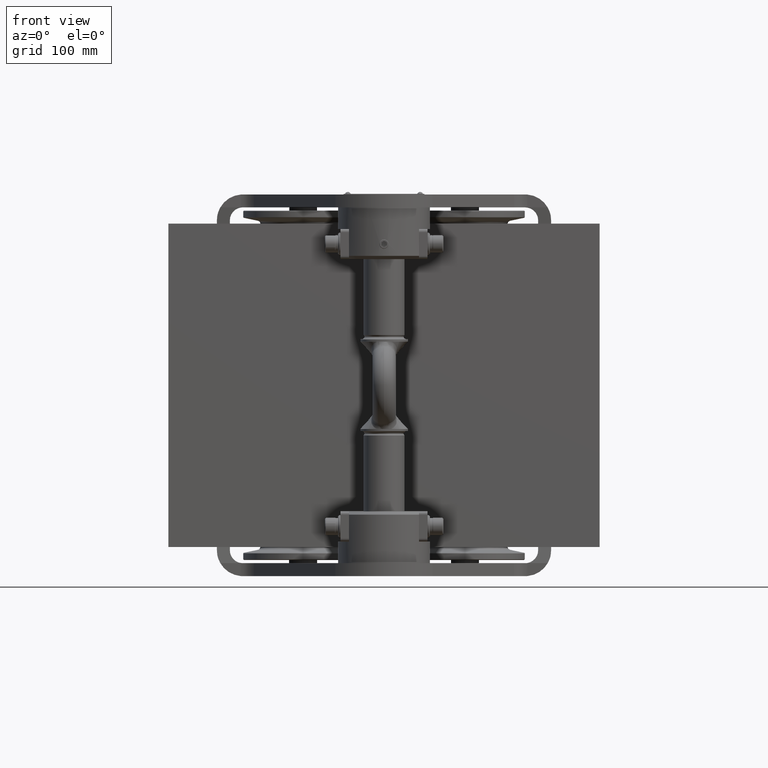
[diagram: clean part render]
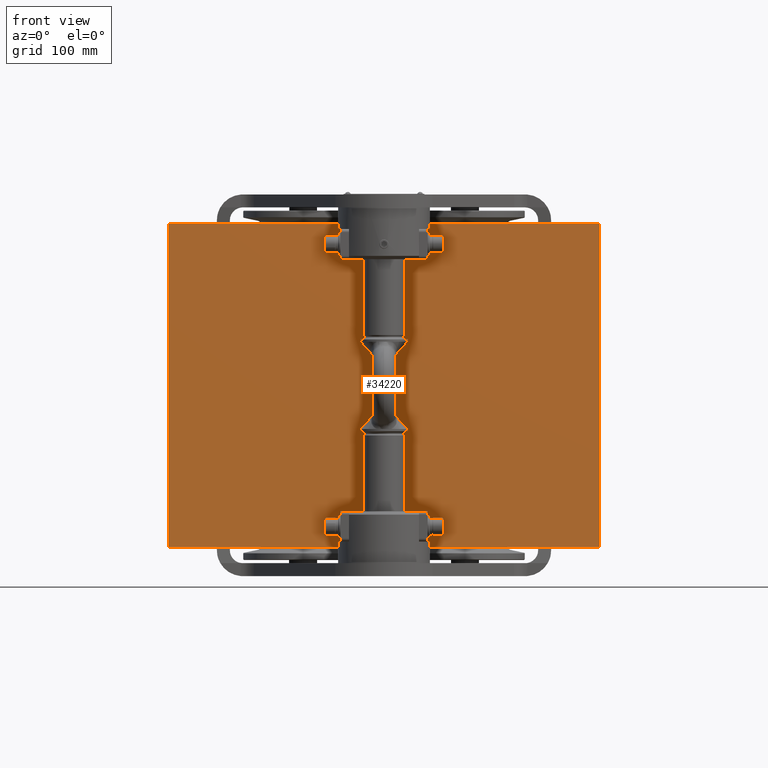
[diagram: same view with one face highlighted and labeled with its STEP entity id]
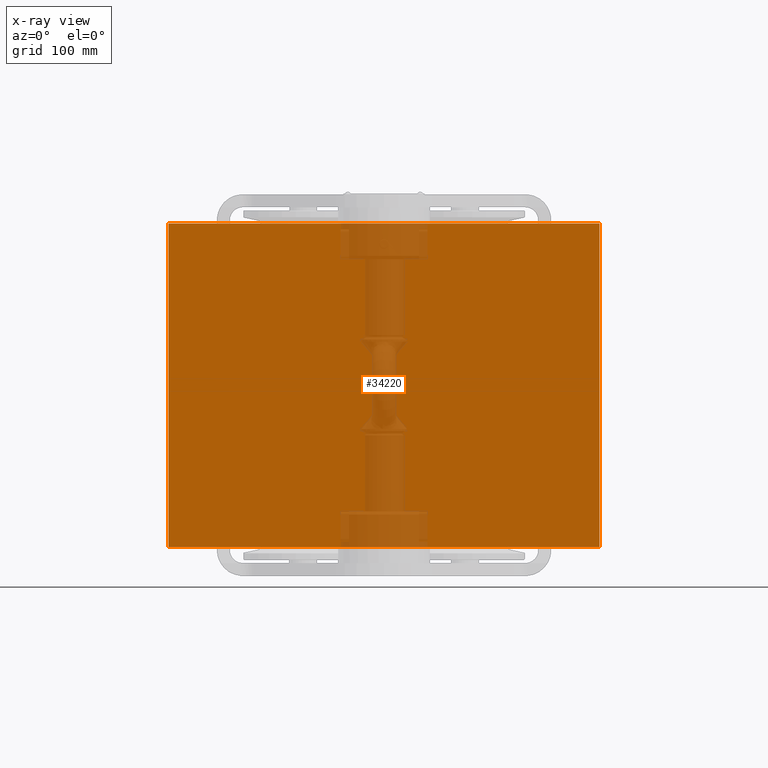
[diagram: x-ray of the same camera — body ghosted, the highlighted face saturated]
A machine part, front view. The second image highlights one B-rep face of the part: STEP entity #34220.
The next image is the same camera in x-ray: the body ghosted, the highlighted face saturated — about 11% of this face is hidden behind the body in this view.
In plain terms, the highlighted planar face has unit normal (0, -1, 0).
Its self-contained STEP definition (entity closure, byte-faithful):
#931 = EDGE_CURVE ( 'NONE', #41157, #21287, #12306, .T. ) ;
#2865 = ORIENTED_EDGE ( 'NONE', *, *, #931, .F. ) ;
#3358 = LINE ( 'NONE', #28149, #7272 ) ;
#4738 = DIRECTION ( 'NONE',  ( -4.634121278308748700E-016, 2.329890535377842300E-016, 1.000000000000000000 ) ) ;
#4760 = LINE ( 'NONE', #21080, #47851 ) ;
#5813 = VECTOR ( 'NONE', #4738, 1000.000000000000000 ) ;
#6403 = EDGE_CURVE ( 'NONE', #53595, #41157, #3358, .T. ) ;
#7178 = EDGE_LOOP ( 'NONE', ( #2865, #10087, #46053, #25983 ) ) ;
#7272 = VECTOR ( 'NONE', #23587, 1000.000000000000000 ) ;
#10087 = ORIENTED_EDGE ( 'NONE', *, *, #6403, .F. ) ;
#10096 = CARTESIAN_POINT ( 'NONE',  ( -199.9999999999999100, -150.0000000000000600, -150.0000000000000900 ) ) ;
#12306 = LINE ( 'NONE', #16926, #5813 ) ;
#16926 = CARTESIAN_POINT ( 'NONE',  ( -199.9999999999999100, -150.0000000000000600, -150.0000000000000900 ) ) ;
#19346 = CARTESIAN_POINT ( 'NONE',  ( 200.0000000000001700, -150.0000000000000600, -149.9999999999998900 ) ) ;
#21080 = CARTESIAN_POINT ( 'NONE',  ( 200.0000000000000600, -149.9999999999999700, 150.0000000000001400 ) ) ;
#21252 = DIRECTION ( 'NONE',  ( -1.000000000000000000, -6.113781963198702100E-031, -4.634121278308743800E-016 ) ) ;
#21287 = VERTEX_POINT ( 'NONE', #46289 ) ;
#23587 = DIRECTION ( 'NONE',  ( -1.000000000000000000, -6.113781963198702100E-031, -4.634121278308743800E-016 ) ) ;
#23940 = AXIS2_PLACEMENT_3D ( 'NONE', #19346, #31421, #53099 ) ;
#25917 = EDGE_CURVE ( 'NONE', #38117, #21287, #4760, .T. ) ;
#25983 = ORIENTED_EDGE ( 'NONE', *, *, #25917, .T. ) ;
#26076 = DIRECTION ( 'NONE',  ( -4.634121278308748700E-016, 2.329890535377842300E-016, 1.000000000000000000 ) ) ;
#28149 = CARTESIAN_POINT ( 'NONE',  ( 200.0000000000001700, -150.0000000000000600, -149.9999999999998900 ) ) ;
#30873 = PLANE ( 'NONE',  #23940 ) ;
#31421 = DIRECTION ( 'NONE',  ( 1.699341240969277400E-031, -1.000000000000000000, 2.329890535377842300E-016 ) ) ;
#32078 = CARTESIAN_POINT ( 'NONE',  ( 200.0000000000001700, -150.0000000000000600, -149.9999999999998900 ) ) ;
#34220 = ADVANCED_FACE ( 'NONE', ( #51082 ), #30873, .T. ) ;
#37764 = CARTESIAN_POINT ( 'NONE',  ( 200.0000000000001700, -150.0000000000000600, -149.9999999999998900 ) ) ;
#38117 = VERTEX_POINT ( 'NONE', #47987 ) ;
#39714 = LINE ( 'NONE', #37764, #53381 ) ;
#39924 = EDGE_CURVE ( 'NONE', #53595, #38117, #39714, .T. ) ;
#41157 = VERTEX_POINT ( 'NONE', #10096 ) ;
#46053 = ORIENTED_EDGE ( 'NONE', *, *, #39924, .T. ) ;
#46289 = CARTESIAN_POINT ( 'NONE',  ( -200.0000000000000900, -149.9999999999999700, 149.9999999999999400 ) ) ;
#47851 = VECTOR ( 'NONE', #21252, 1000.000000000000000 ) ;
#47987 = CARTESIAN_POINT ( 'NONE',  ( 200.0000000000000600, -149.9999999999999700, 150.0000000000001400 ) ) ;
#51082 = FACE_OUTER_BOUND ( 'NONE', #7178, .T. ) ;
#53099 = DIRECTION ( 'NONE',  ( -4.634121278308748700E-016, 2.329890535377842300E-016, 1.000000000000000000 ) ) ;
#53381 = VECTOR ( 'NONE', #26076, 1000.000000000000000 ) ;
#53595 = VERTEX_POINT ( 'NONE', #32078 ) ;